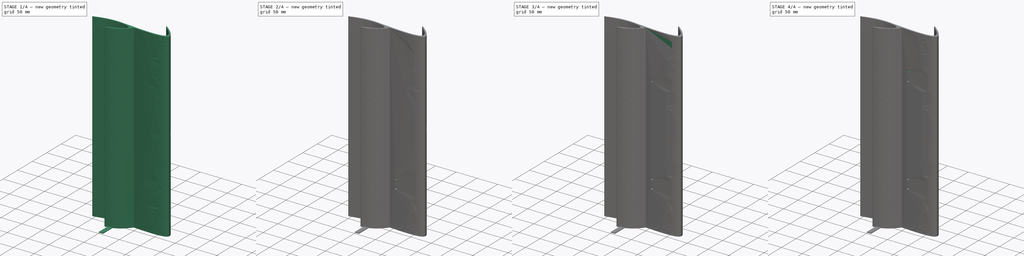
[diagram: build sequence overview — one tinted view per stage of 4, left to right]
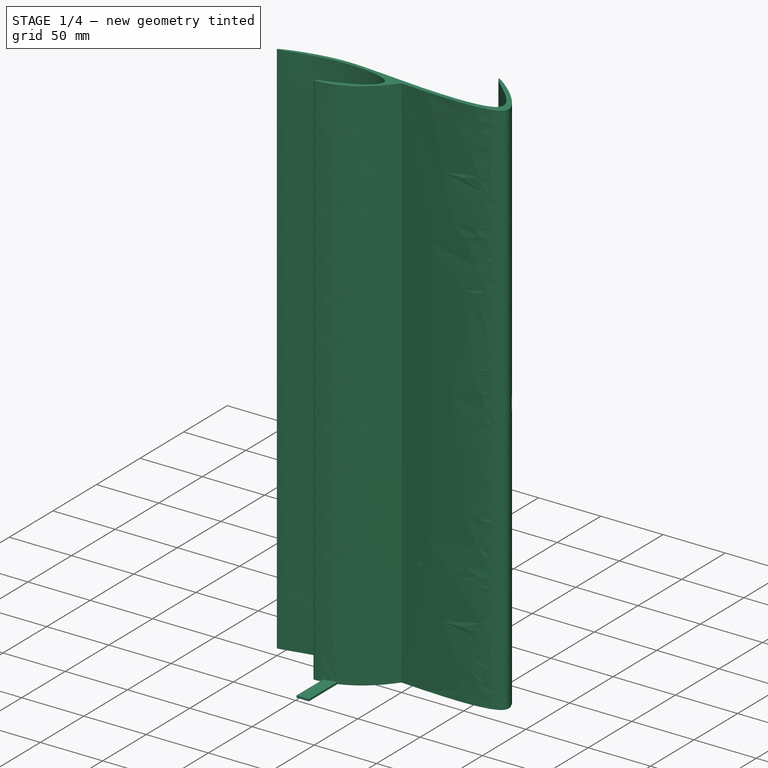
[diagram: stage 1 of 4 — iso view after this stage's code; geometry added in this stage tinted green]
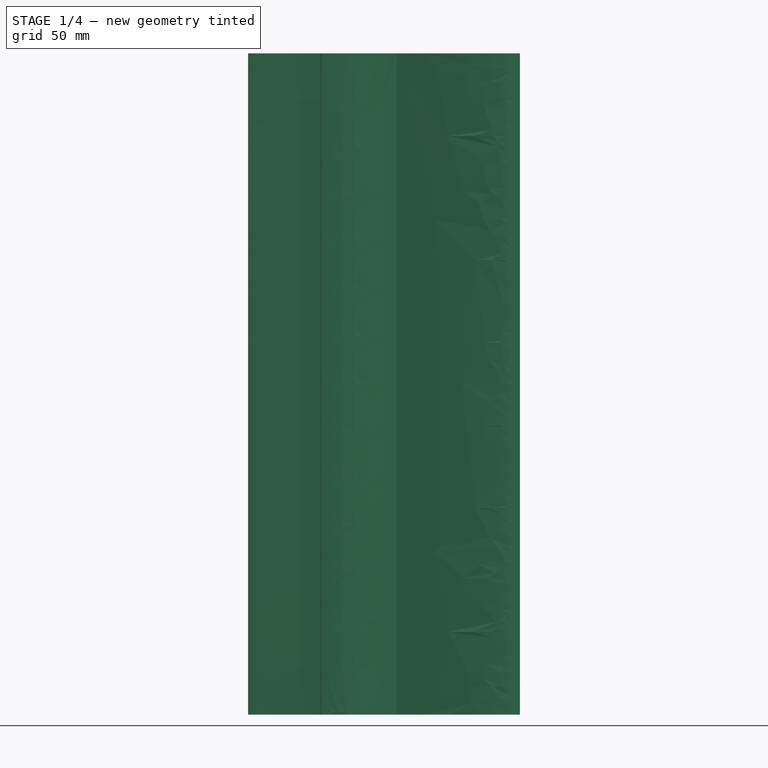
[diagram: stage 1 of 4 — front view after this stage's code; geometry added in this stage tinted green]
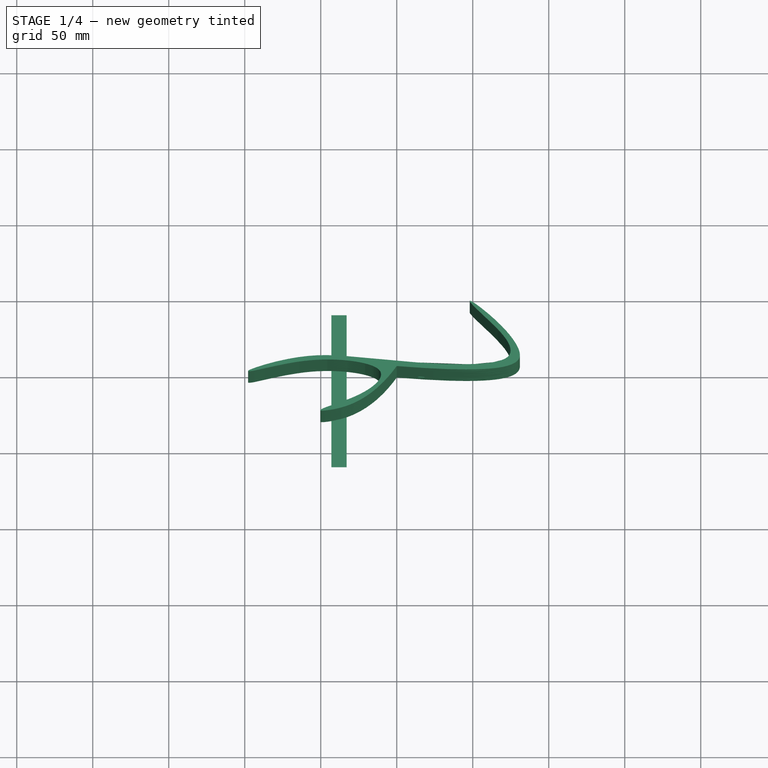
[diagram: stage 1 of 4 — top view after this stage's code; geometry added in this stage tinted green]
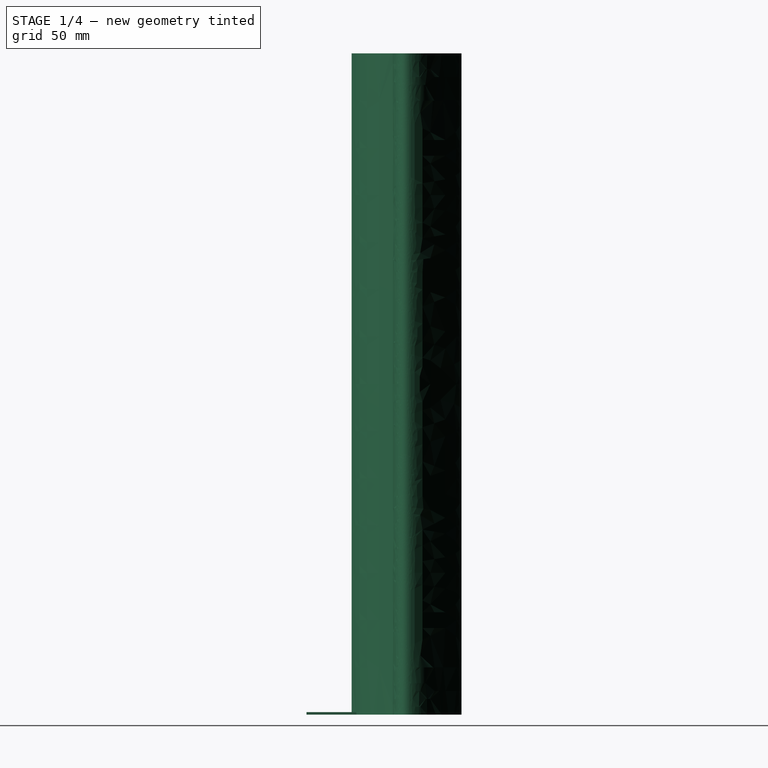
[diagram: stage 1 of 4 — right view after this stage's code; geometry added in this stage tinted green]
FCSTD DOCUMENT  (FreeCAD 0.18R16110 (Git))
Label: wing
License: All rights reserved
LicenseURL: http://en.wikipedia.org/wiki/All_rights_reserved
objects: Part::Cylinder×4, Part::Cut×4, Sketcher::SketchObject×1, Part::Extrusion×1, Part::Box×1, Part::MultiFuse×1
note: 12 computed .brp shape members not serialized (recipe doc carries the construction recipe); baked Part::Feature solids carry a one-line shape summary decoded from their .brp

FEATURE [Sketcher::SketchObject] Sketch
  sketch-geometry (36):
    g0: LineSegment [constr] StartX=-100 StartY=0 StartZ=0 EndX=100 EndY=0 EndZ=0
    g1: LineSegment [constr] StartX=100 StartY=0 StartZ=0 EndX=50.5 EndY=49.5 EndZ=0
    g2: LineSegment [constr] StartX=50.5 StartY=49.5 StartZ=0 EndX=50.5 EndY=0 EndZ=0
    g3-g19: Circle [constr] x17 (B-spline internal-alignment scaffolding for g20; pole/knot coordinates omitted)
    g20: BSplineCurve PolesCount=17 KnotsCount=15 Degree=3 IsPeriodic=0
    g21-g35: GeomPoint [constr] x15 (B-spline internal-alignment scaffolding for g20; pole/knot coordinates omitted)
  constraints (17):
    c: PointOnObject(g0,g-1)
    c: PointOnObject(g0,g-1)
    c: DistanceX(g0) = 100
    c: DistanceX(g0) = -100
    c: Coincident(g1,g0)
    c: Angle(g1,g0) = 0.785398
    c: PointOnObject(g2,g0)
    c: Vertical(g2)
    c: Distance(g2) = 49.5
    c: Coincident(g1,g2)
    c: Coincident(g20,g-1)
    c: Radius(g3) = 5
    c: Equal(g3, g4-g8) x5
    c: PointOnObject(g8,g0)
    c: Equal(g3, g9-g19) x11
    c: InternalAlignment(g3-g19 -> g20) x17
    c: InternalAlignment(g21-g35 -> g20) x15
FEATURE [Part::Extrusion] Extrude
  Base = -> Sketch
  Dir = (0,0,1)
  DirMode = 2
  FaceMakerClass = Part::FaceMakerBullseye
  LengthFwd = 435
  LengthRev = 0
  Solid = true
  Symmetric = false
FEATURE [Part::Cylinder] Cylinder
  Angle = 360
  AttacherType = Attacher::AttachEngine3D
  Height = 3.5
  Placement = pos=(16,2,90) rot=(0.999924,-0.008726,-0.008726;1.57087rad)
  Radius = 2.5
FEATURE [Part::Box] Box  label="Cube"
  AttacherType = Attacher::AttachEngine3D
  Height = 1.6
  Length = 10
  Placement = pos=(-43,-59,0) rot=(0,0,1;0rad)
  Width = 100
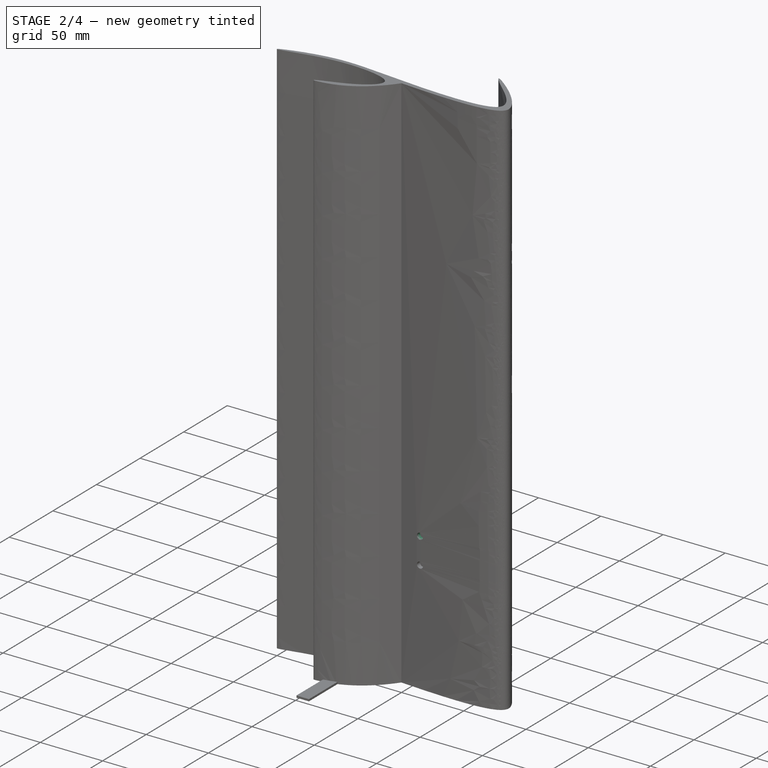
[diagram: stage 2 of 4 — iso view after this stage's code; geometry added in this stage tinted green]
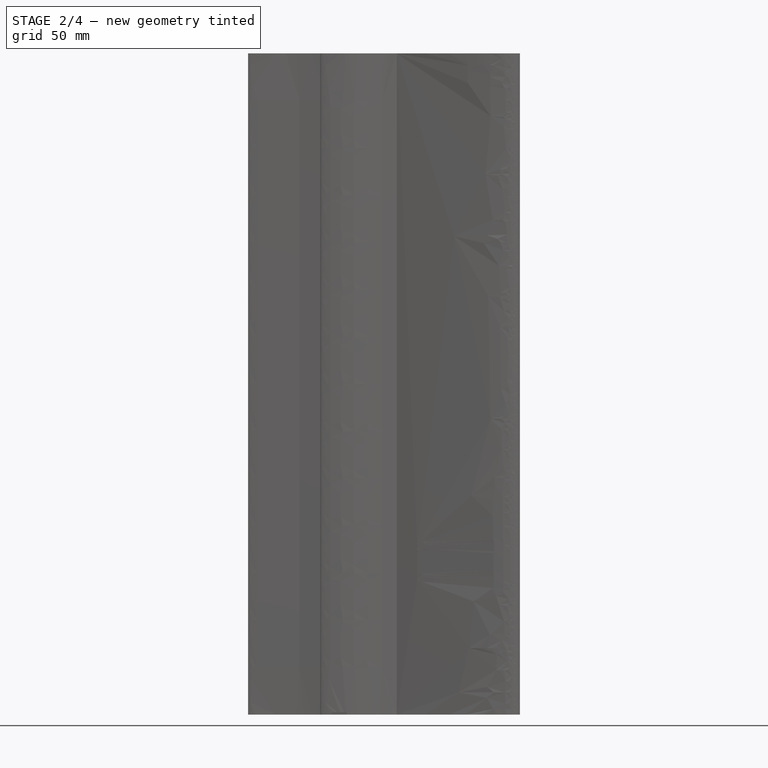
[diagram: stage 2 of 4 — front view after this stage's code; geometry added in this stage tinted green]
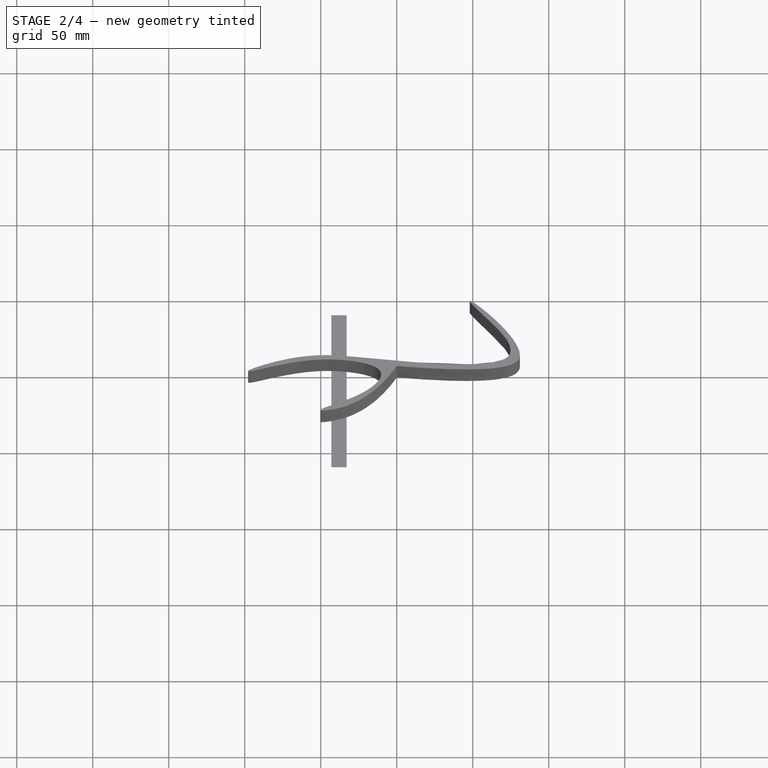
[diagram: stage 2 of 4 — top view after this stage's code; geometry added in this stage tinted green]
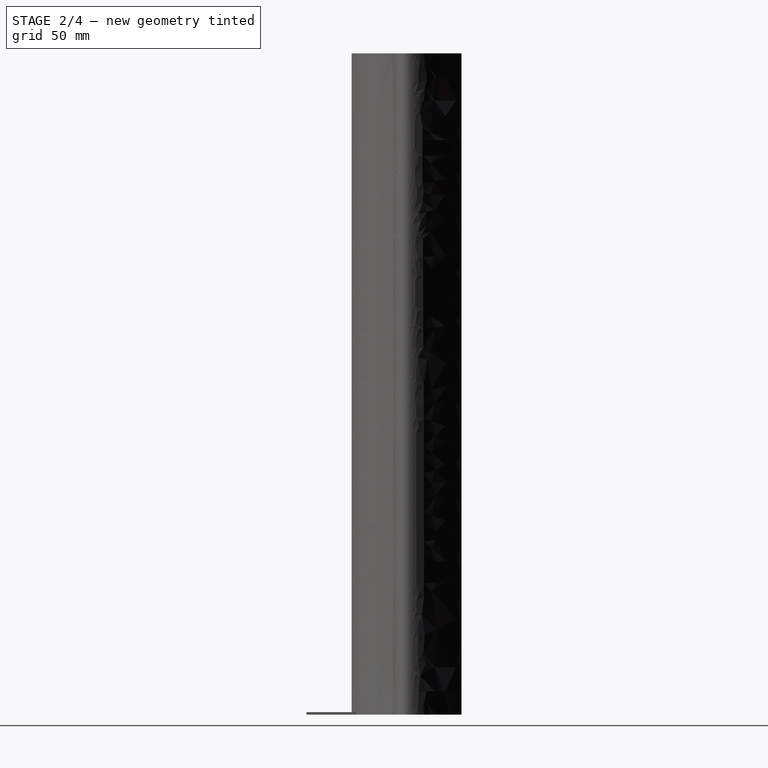
[diagram: stage 2 of 4 — right view after this stage's code; geometry added in this stage tinted green]
FEATURE [Part::Cylinder] Cylinder001
  Angle = 360
  AttacherType = Attacher::AttachEngine3D
  Height = 3.5
  Placement = pos=(16,2,111) rot=(0.999924,-0.008726,-0.008726;1.57087rad)
  Radius = 2.5
FEATURE [Part::Cut] Cut
  Base = -> Extrude
  Tool = -> Cylinder
FEATURE [Part::Cut] Cut001
  Base = -> Cut
  Tool = -> Cylinder001
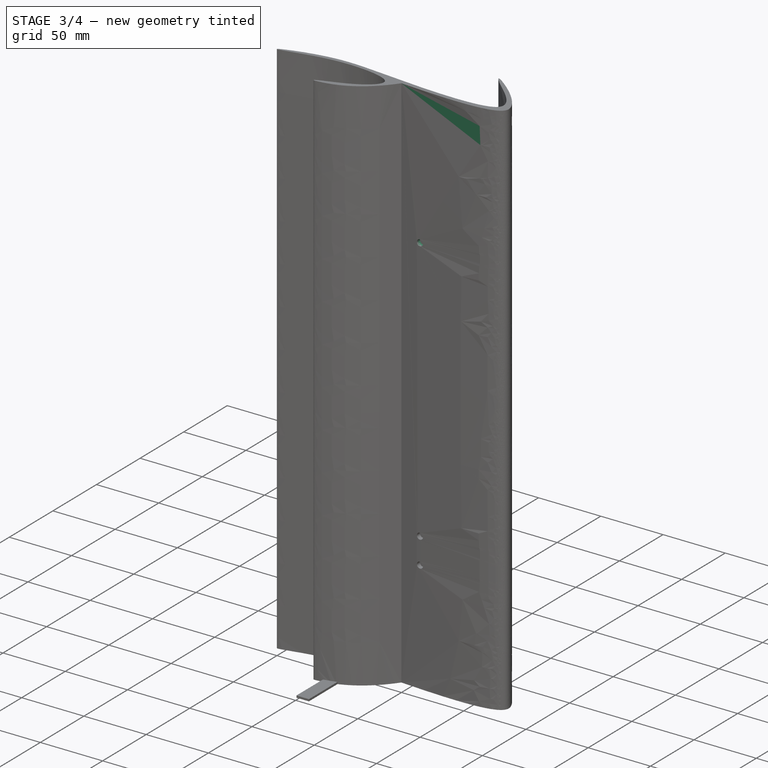
[diagram: stage 3 of 4 — iso view after this stage's code; geometry added in this stage tinted green]
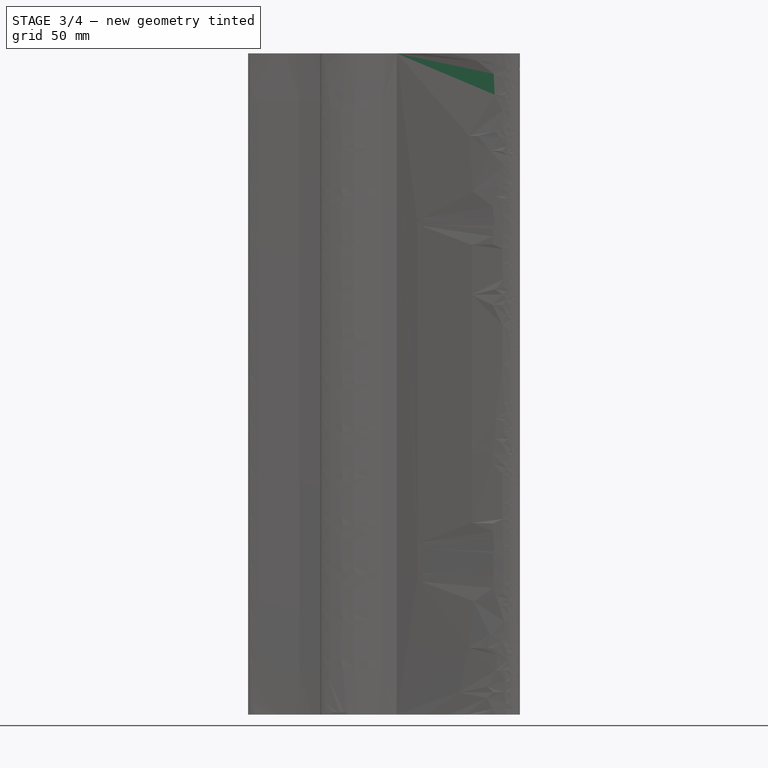
[diagram: stage 3 of 4 — front view after this stage's code; geometry added in this stage tinted green]
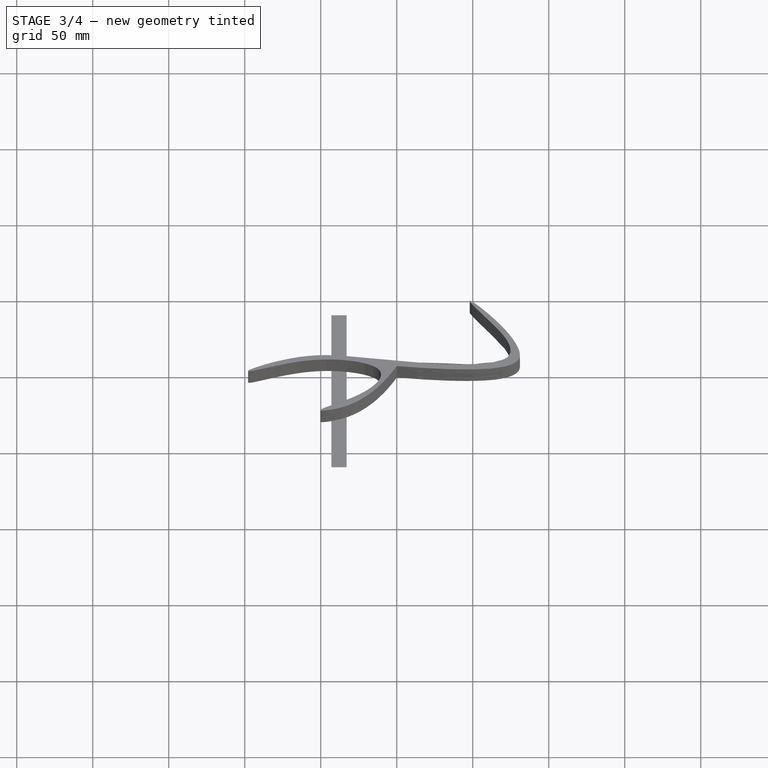
[diagram: stage 3 of 4 — top view after this stage's code; geometry added in this stage tinted green]
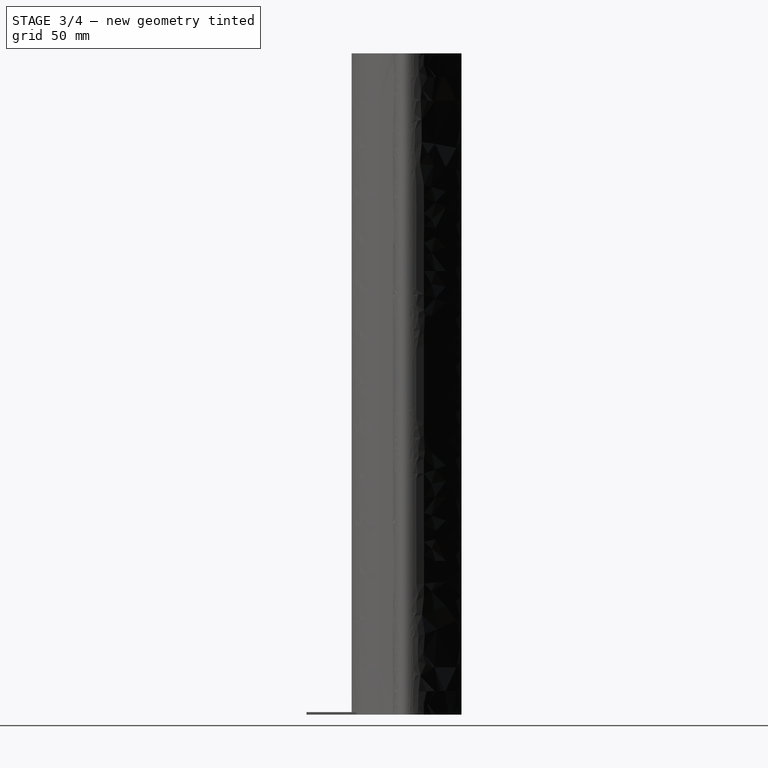
[diagram: stage 3 of 4 — right view after this stage's code; geometry added in this stage tinted green]
FEATURE [Part::Cylinder] Cylinder002
  Angle = 360
  AttacherType = Attacher::AttachEngine3D
  Height = 3.5
  Placement = pos=(16,2,324) rot=(0.999924,-0.008726,-0.008726;1.57087rad)
  Radius = 2.5
FEATURE [Part::Cut] Cut002
  Base = -> Cut001
  Tool = -> Cylinder002
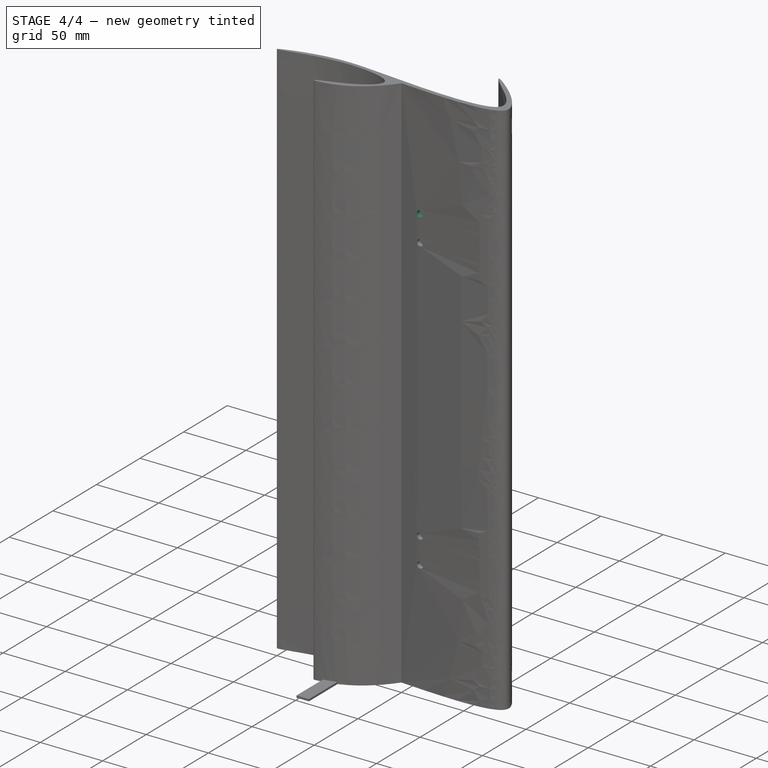
[diagram: stage 4 of 4 — iso view after this stage's code; geometry added in this stage tinted green]
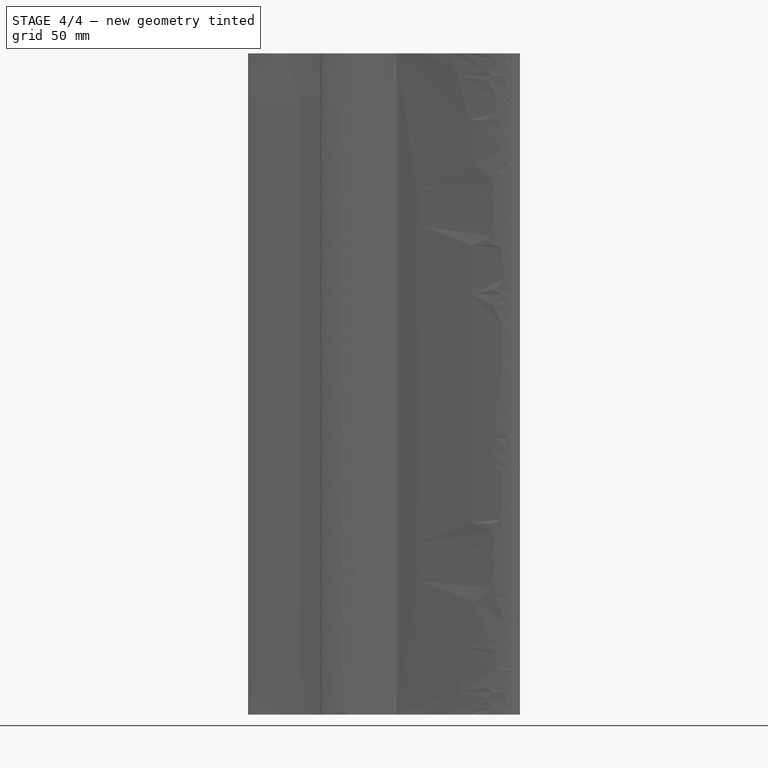
[diagram: stage 4 of 4 — front view after this stage's code; geometry added in this stage tinted green]
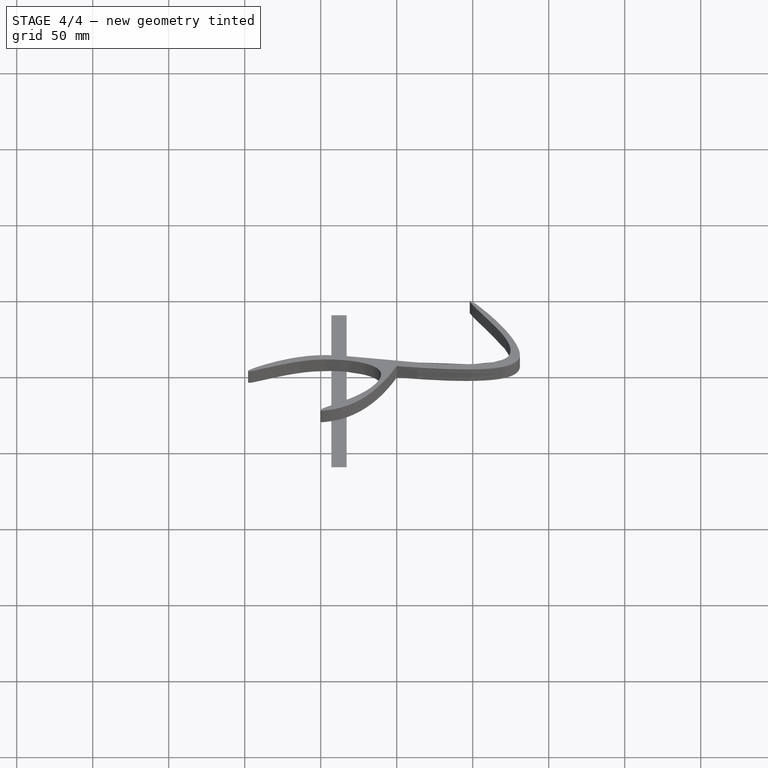
[diagram: stage 4 of 4 — top view after this stage's code; geometry added in this stage tinted green]
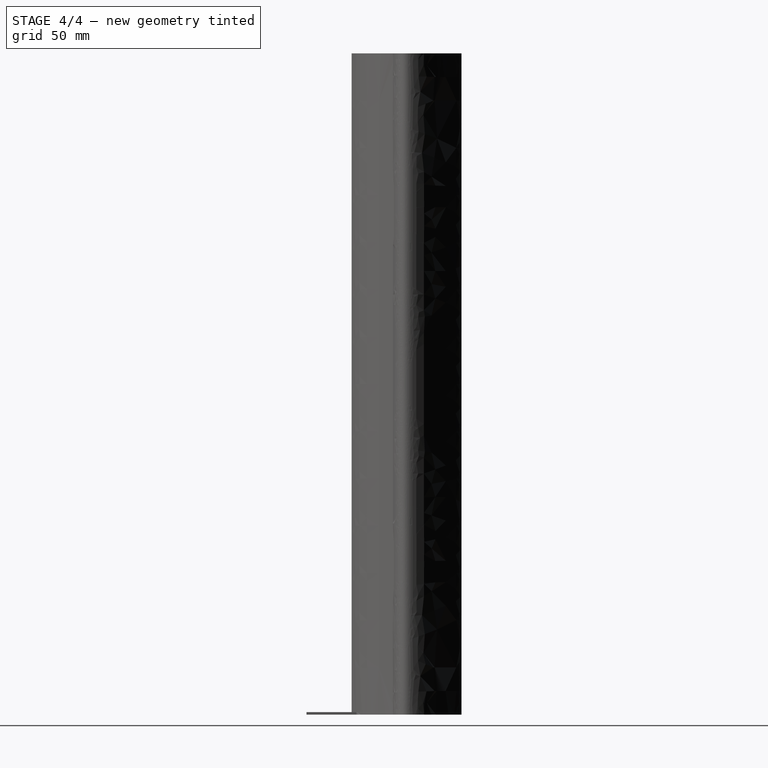
[diagram: stage 4 of 4 — right view after this stage's code; geometry added in this stage tinted green]
FEATURE [Part::Cylinder] Cylinder003
  Angle = 360
  AttacherType = Attacher::AttachEngine3D
  Height = 3.5
  Placement = pos=(16,2,345) rot=(0.999924,-0.008726,-0.008726;1.57087rad)
  Radius = 2.5
FEATURE [Part::Cut] Cut003
  Base = -> Cut002
  Tool = -> Cylinder003
FEATURE [Part::MultiFuse] Fusion
  Shapes = -> [Cut003,Box]
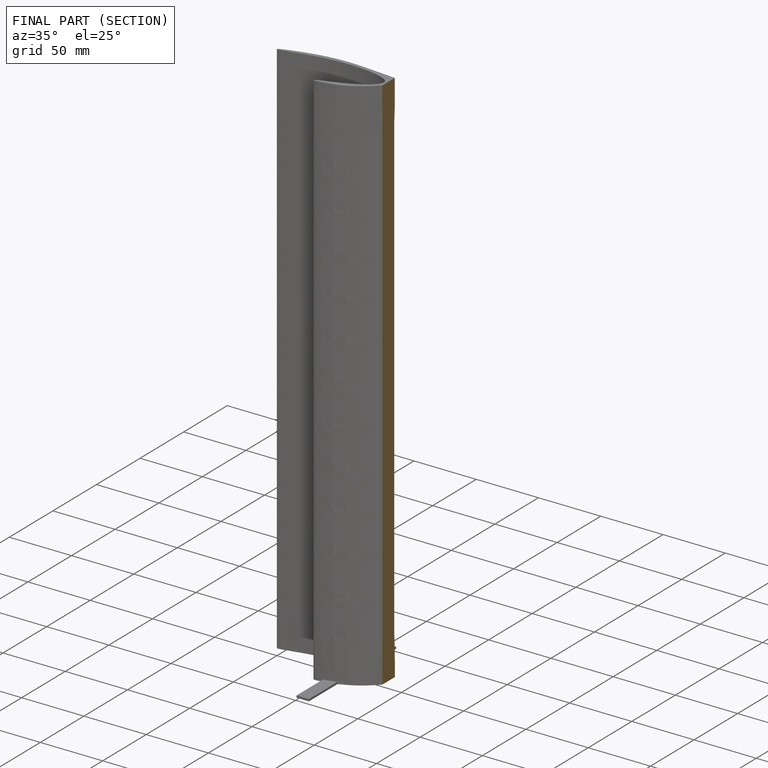
[diagram: finished part — half-section view (interior)]
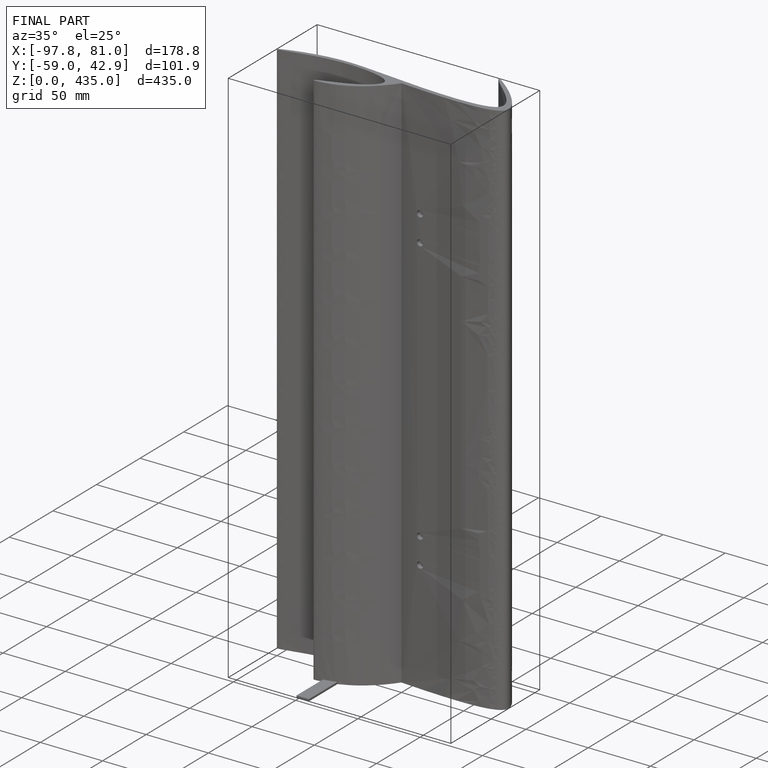
[diagram: finished part — iso view with bounding-box wireframe]
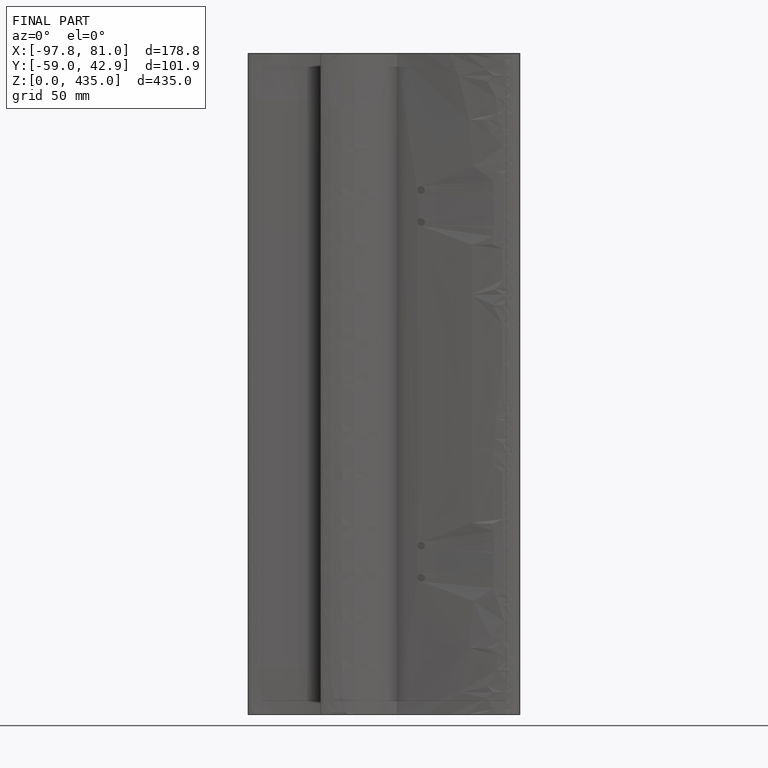
[diagram: finished part — front view with bounding-box wireframe]
